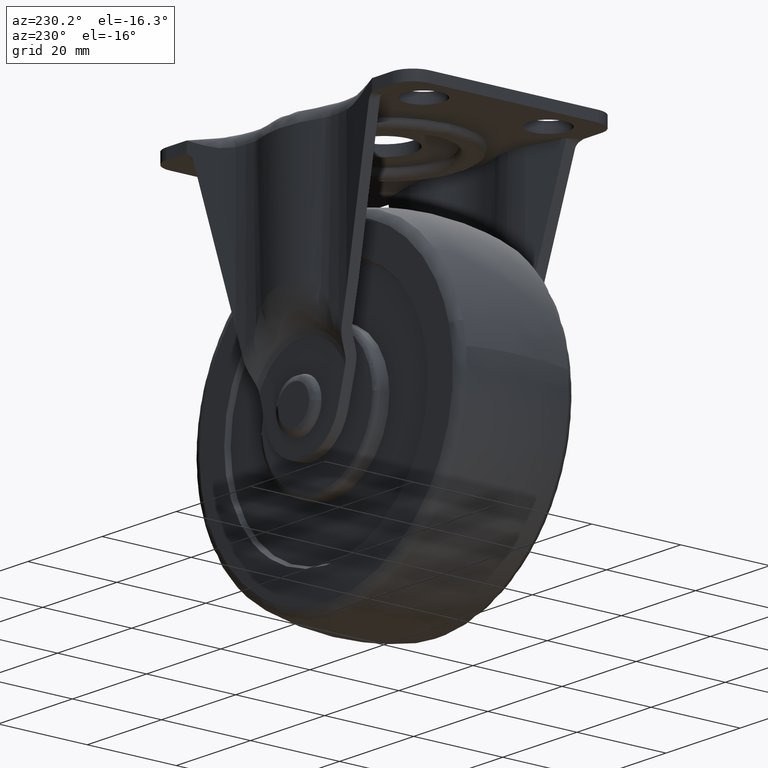
[diagram: clean part render]
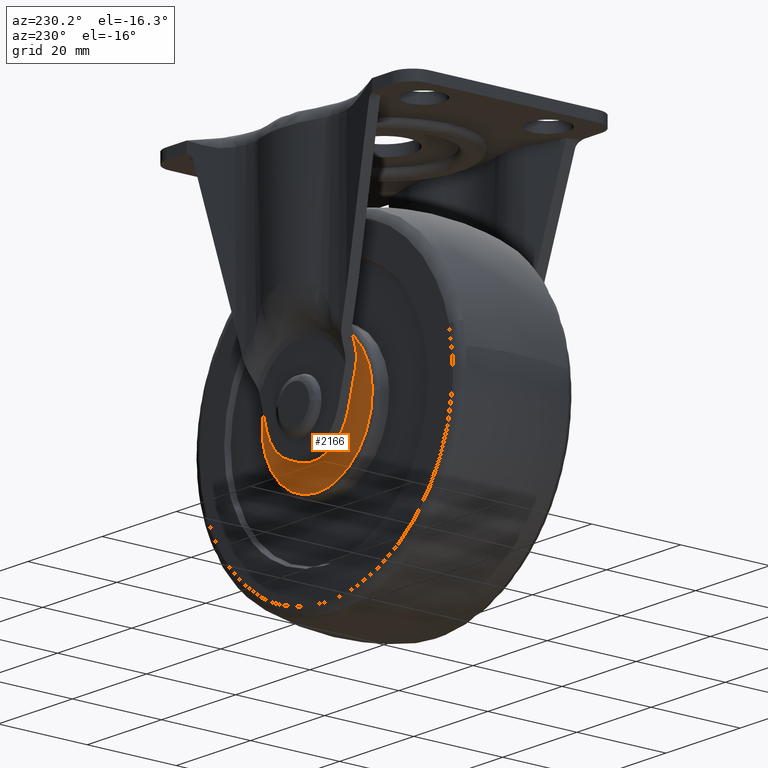
[diagram: same view with one face highlighted and labeled with its STEP entity id]
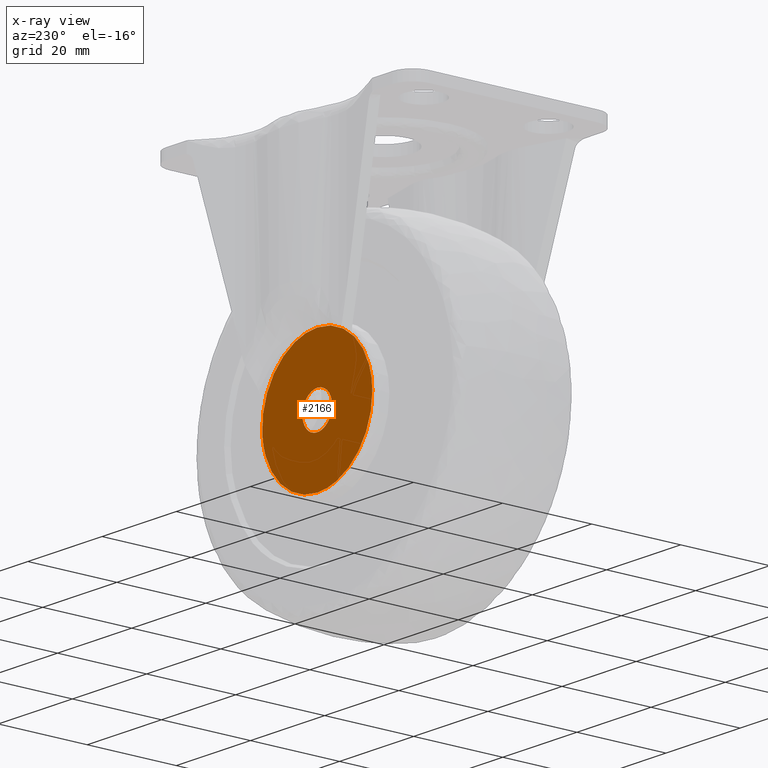
[diagram: x-ray of the same camera — body ghosted, the highlighted face saturated]
A machine part, auxiliary view. The second image highlights one B-rep face of the part: STEP entity #2166.
The next image is the same camera in x-ray: the body ghosted, the highlighted face saturated — about 0% of this face is hidden behind the body in this view.
In plain terms, the highlighted face is a freeform B-spline surface patch.
Its self-contained STEP definition (entity closure, byte-faithful):
#124=CARTESIAN_POINT('',(2.753418186849582,15.0,-2.901497104598689));
#125=VERTEX_POINT('',#124);
#131=CARTESIAN_POINT('',(0.0,15.0,-4.0));
#132=VERTEX_POINT('',#131);
#133=CARTESIAN_POINT('',(0.0,15.0,-4.0));
#134=CARTESIAN_POINT('',(0.411281065418479,15.000000000000041,-4.000233382833497));
#135=CARTESIAN_POINT('',(1.012178015002485,14.999999999999920,-3.906442857973365));
#136=CARTESIAN_POINT('',(1.954805351464561,15.000000000000080,-3.530355462710295));
#137=CARTESIAN_POINT('',(2.455247859110659,14.999999999999931,-3.184780186021824));
#138=CARTESIAN_POINT('',(2.753418186849582,15.0,-2.901497104598689));
#139=B_SPLINE_CURVE_WITH_KNOTS('',3,(#133,#134,#135,#136,#137,#138),.UNSPECIFIED.,.F.,.U.,(4,1,1,4),(0.000000036924167,1.233770300398311,1.803173889217264,3.036944152682459),.UNSPECIFIED.);
#140=EDGE_CURVE('',#132,#125,#139,.T.);
#142=CARTESIAN_POINT('',(-3.999999999999747,15.0,-0.000001422114586));
#143=VERTEX_POINT('',#142);
#144=CARTESIAN_POINT('',(-3.999999999999747,15.0,-0.000001422114586));
#145=CARTESIAN_POINT('',(-4.000131415905226,14.999999999999989,-0.359986068289557));
#146=CARTESIAN_POINT('',(-3.924360075715298,15.000000000000011,-0.916232165281375));
#147=CARTESIAN_POINT('',(-3.647958216249098,14.999999999999989,-1.688616519746435));
#148=CARTESIAN_POINT('',(-3.226721670894381,15.000000000000020,-2.432647580040876));
#149=CARTESIAN_POINT('',(-2.587996737392360,15.0,-3.103422916757284));
#150=CARTESIAN_POINT('',(-1.865596583772531,15.000000000000030,-3.560707182614698));
#151=CARTESIAN_POINT('',(-1.047070538680773,14.999999999999959,-3.899852388201856));
#152=CARTESIAN_POINT('',(-0.425458006456396,15.000000000000060,-4.000228060278216));
#153=CARTESIAN_POINT('',(0.0,15.0,-4.0));
#154=B_SPLINE_CURVE_WITH_KNOTS('',3,(#144,#145,#146,#147,#148,#149,#150,#151,#152,#153),.UNSPECIFIED.,.F.,.U.,(4,1,1,1,1,1,1,4),(0.000000109794394,1.079929653352755,1.669013743901721,2.454466620509347,3.632522488957104,4.417966446222109,5.007046871232914,6.283342175792430),.UNSPECIFIED.);
#155=EDGE_CURVE('',#143,#132,#154,.T.);
#157=CARTESIAN_POINT('',(0.0,15.0,4.0));
#158=VERTEX_POINT('',#157);
#159=CARTESIAN_POINT('',(0.0,15.0,4.0));
#160=CARTESIAN_POINT('',(-0.261786649221330,15.0,4.000030311106098));
#161=CARTESIAN_POINT('',(-0.818113472703123,15.0,3.945210557005112));
#162=CARTESIAN_POINT('',(-1.540028983150977,15.0,3.716530060783644));
#163=CARTESIAN_POINT('',(-2.205635413132823,15.0,3.360714901780175));
#164=CARTESIAN_POINT('',(-2.775950278660583,14.999999999999989,2.915668423866436));
#165=CARTESIAN_POINT('',(-3.334389285999332,15.000000000000020,2.268301528082932));
#166=CARTESIAN_POINT('',(-3.847434797148639,14.999999999999940,1.308753684857870));
#167=CARTESIAN_POINT('',(-4.000428423722541,15.000000000000091,0.490933353977176));
#168=CARTESIAN_POINT('',(-3.999999999999747,15.0,-0.000001422114586));
#169=B_SPLINE_CURVE_WITH_KNOTS('',3,(#159,#160,#161,#162,#163,#164,#165,#166,#167,#168),.UNSPECIFIED.,.F.,.U.,(4,1,1,1,1,1,1,4),(0.000000107845151,0.785384164561502,1.669014168319499,2.258107001564493,3.043504478465067,3.828876641769297,4.810686004064900,6.283343778887010),.UNSPECIFIED.);
#170=EDGE_CURVE('',#158,#143,#169,.T.);
#172=CARTESIAN_POINT('',(3.054222908621160,15.0,2.582968298141589));
#173=VERTEX_POINT('',#172);
#174=CARTESIAN_POINT('',(3.054222908621160,15.0,2.582968298141589));
#175=CARTESIAN_POINT('',(2.703996158234705,15.0,2.998089279087090));
#176=CARTESIAN_POINT('',(2.020153838719956,15.000000000000011,3.533156689072683));
#177=CARTESIAN_POINT('',(0.923067551567393,15.000000000000011,3.928644467739570));
#178=CARTESIAN_POINT('',(0.307703197532418,15.0,4.000055843034038));
#179=CARTESIAN_POINT('',(0.0,15.0,4.0));
#180=B_SPLINE_CURVE_WITH_KNOTS('',3,(#174,#175,#176,#177,#178,#179),.UNSPECIFIED.,.F.,.U.,(4,1,1,4),(0.000000066988236,1.629023395057059,2.552124155354419,3.475233432682463),.UNSPECIFIED.);
#181=EDGE_CURVE('',#173,#158,#180,.T.);
#217=CARTESIAN_POINT('',(3.999999999999748,15.0,0.000001422114585));
#218=VERTEX_POINT('',#217);
#219=CARTESIAN_POINT('',(3.999999999999748,15.0,0.000001422114585));
#220=CARTESIAN_POINT('',(4.000025149337777,15.000000000000020,0.263248068005417));
#221=CARTESIAN_POINT('',(3.944971718910189,14.999999999999980,0.818989742112668));
#222=CARTESIAN_POINT('',(3.660316564877854,15.000000000000030,1.716564589860577));
#223=CARTESIAN_POINT('',(3.299903172626157,14.999999999999989,2.292716870207074));
#224=CARTESIAN_POINT('',(3.054222908621160,15.0,2.582968298141589));
#225=B_SPLINE_CURVE_WITH_KNOTS('',3,(#219,#220,#221,#222,#223,#224),.UNSPECIFIED.,.F.,.U.,(4,1,1,4),(0.000000040107236,0.789760620236525,1.667253632524804,2.808033704546654),.UNSPECIFIED.);
#226=EDGE_CURVE('',#218,#173,#225,.T.);
#228=CARTESIAN_POINT('',(2.753418186849582,15.0,-2.901497104598689));
#229=CARTESIAN_POINT('',(2.974226834544422,15.000000000000020,-2.692042308483544));
#230=CARTESIAN_POINT('',(3.345755305605200,14.999999999999980,-2.248476439147650));
#231=CARTESIAN_POINT('',(3.849976200474854,15.000000000000020,-1.284682456170681));
#232=CARTESIAN_POINT('',(4.000525246351135,15.0,-0.507327890861913));
#233=CARTESIAN_POINT('',(3.999999999999748,15.0,0.000001422114585));
#234=B_SPLINE_CURVE_WITH_KNOTS('',3,(#228,#229,#230,#231,#232,#233),.UNSPECIFIED.,.F.,.U.,(4,1,1,4),(0.000000028428660,0.913050214077304,1.724649636432586,3.246400491814488),.UNSPECIFIED.);
#235=EDGE_CURVE('',#125,#218,#234,.T.);
#1606=CARTESIAN_POINT('',(14.813847916871790,15.000000000000030,-1.035538622441311));
#1607=VERTEX_POINT('',#1606);
#1608=CARTESIAN_POINT('',(0.0,15.0,14.849997650934140));
#1609=VERTEX_POINT('',#1608);
#1610=CARTESIAN_POINT('',(14.813847916871790,15.000000000000030,-1.035538622441311));
#1611=CARTESIAN_POINT('',(14.911812044587110,15.000000000000041,0.356888045510604));
#1612=CARTESIAN_POINT('',(14.760311291010670,14.999999999999989,2.465853134897668));
#1613=CARTESIAN_POINT('',(13.855674976181950,15.000000000000069,5.580971272637094));
#1614=CARTESIAN_POINT('',(12.673211683589381,14.999999999999970,7.917305907120219));
#1615=CARTESIAN_POINT('',(11.110863834224221,15.000000000000030,9.926701562119336));
#1616=CARTESIAN_POINT('',(9.237996428415860,14.999999999999989,11.739635161793430));
#1617=CARTESIAN_POINT('',(7.050625029194907,15.0,13.182698472168850));
#1618=CARTESIAN_POINT('',(4.749977917126099,15.000000000000011,14.113321758734291));
#1619=CARTESIAN_POINT('',(2.537710522518824,14.999999999999980,14.693226744084649));
#1620=CARTESIAN_POINT('',(1.015117465699373,15.000000000000011,14.850146136485231));
#1621=CARTESIAN_POINT('',(0.0,15.0,14.849997650934140));
#1622=B_SPLINE_CURVE_WITH_KNOTS('',3,(#1610,#1611,#1612,#1613,#1614,#1615,#1616,#1617,#1618,#1619,#1620,#1621),.UNSPECIFIED.,.F.,.U.,(4,1,1,1,1,1,1,1,1,4),(0.000000032364039,4.187352602024177,6.281054422409291,9.707117551488308,11.991102559966700,13.894408755043131,17.510804304646669,19.794832499934991,21.317543762248199,24.362868234977160),.UNSPECIFIED.);
#1623=EDGE_CURVE('',#1607,#1609,#1622,.T.);
#1625=CARTESIAN_POINT('',(-14.848825168991320,15.000000000000030,0.186605663345871));
#1626=VERTEX_POINT('',#1625);
#1627=CARTESIAN_POINT('',(0.0,15.0,14.849997650934140));
#1628=CARTESIAN_POINT('',(-1.084691967737202,14.999999999999950,14.850207957974400));
#1629=CARTESIAN_POINT('',(-2.832118361802218,15.000000000000060,14.657615913880580));
#1630=CARTESIAN_POINT('',(-5.265615262923359,14.999999999999980,13.941784789127450));
#1631=CARTESIAN_POINT('',(-7.516243753746062,15.000000000000011,12.903850866203900));
#1632=CARTESIAN_POINT('',(-9.594793585850800,14.999999999999931,11.436257521035429));
#1633=CARTESIAN_POINT('',(-11.378522580338529,15.000000000000069,9.631241553532909));
#1634=CARTESIAN_POINT('',(-12.868909531104659,15.000000000000030,7.575884229795671));
#1635=CARTESIAN_POINT('',(-13.937513388813491,15.000000000000091,5.333597007439649));
#1636=CARTESIAN_POINT('',(-14.657234410989901,14.999999999999980,2.775507779442614));
#1637=CARTESIAN_POINT('',(-14.836823483456650,15.000000000000190,1.150683276144067));
#1638=CARTESIAN_POINT('',(-14.848825168991320,15.000000000000030,0.186605663345871));
#1639=B_SPLINE_CURVE_WITH_KNOTS('',3,(#1627,#1628,#1629,#1630,#1631,#1632,#1633,#1634,#1635,#1636,#1637,#1638),.UNSPECIFIED.,.F.,.U.,(4,1,1,1,1,1,1,1,1,4),(0.000000062415094,3.254030345674995,5.242623319018978,7.592779268386497,10.666074495416840,12.835337645016811,15.185510853227120,18.258801741857269,20.247403342940999,23.139854072044599),.UNSPECIFIED.);
#1640=EDGE_CURVE('',#1609,#1626,#1639,.T.);
#1692=CARTESIAN_POINT('',(0.0,15.0,-14.849997650934140));
#1693=VERTEX_POINT('',#1692);
#1694=CARTESIAN_POINT('',(0.0,15.0,-14.849997650934140));
#1695=CARTESIAN_POINT('',(1.102905976210223,15.000000000000011,-14.850241735888901));
#1696=CARTESIAN_POINT('',(2.786148283811361,14.999999999999989,-14.661531565996730));
#1697=CARTESIAN_POINT('',(5.188098719535177,15.000000000000030,-13.967101347786510));
#1698=CARTESIAN_POINT('',(7.153912035007933,14.999999999999989,-13.084175425146229));
#1699=CARTESIAN_POINT('',(9.003721495157533,15.000000000000011,-11.870939589502489));
#1700=CARTESIAN_POINT('',(10.663764626225399,14.999999999999870,-10.411493391394060));
#1701=CARTESIAN_POINT('',(12.207676856169829,15.000000000000091,-8.589812442064815));
#1702=CARTESIAN_POINT('',(13.556922840143301,14.999999999999989,-6.271945503424270));
#1703=CARTESIAN_POINT('',(14.469342963584980,15.000000000000050,-3.688096961425006));
#1704=CARTESIAN_POINT('',(14.753204239954460,15.000000000000020,-1.904120328241256));
#1705=CARTESIAN_POINT('',(14.813847916871790,15.000000000000030,-1.035538622441311));
#1706=B_SPLINE_CURVE_WITH_KNOTS('',3,(#1694,#1695,#1696,#1697,#1698,#1699,#1700,#1701,#1702,#1703,#1704,#1705),.UNSPECIFIED.,.F.,.U.,(4,1,1,1,1,1,1,1,1,4),(0.000000074214011,3.308657608347069,5.050094922000845,7.488088999077867,9.751935010762093,11.667409844621099,14.105433943806810,16.891694216119820,19.677977482755761,22.290069752651441),.UNSPECIFIED.);
#1707=EDGE_CURVE('',#1693,#1607,#1706,.T.);
#1713=CARTESIAN_POINT('',(-14.848825168991320,15.000000000000030,0.186605663345871));
#1714=CARTESIAN_POINT('',(-14.861261221542970,15.000000000000041,-0.793020858505955));
#1715=CARTESIAN_POINT('',(-14.723015253433980,15.000000000000011,-2.386846411782952));
#1716=CARTESIAN_POINT('',(-14.197526917884749,15.000000000000020,-4.468758364965011));
#1717=CARTESIAN_POINT('',(-13.366542485961659,15.000000000000041,-6.646043757525988));
#1718=CARTESIAN_POINT('',(-12.039820527817870,14.999999999999970,-8.869826573466478));
#1719=CARTESIAN_POINT('',(-10.295227390136800,15.000000000000041,-10.772475909243580));
#1720=CARTESIAN_POINT('',(-8.635082433041033,14.999999999999989,-12.132989352683420));
#1721=CARTESIAN_POINT('',(-6.810530524786102,14.999999999999970,-13.268487694613910));
#1722=CARTESIAN_POINT('',(-4.882415359083121,15.000000000000069,-14.074222855334719));
#1723=CARTESIAN_POINT('',(-2.571649494155637,14.999999999999890,-14.688320569855980));
#1724=CARTESIAN_POINT('',(-1.040951807995088,15.000000000000400,-14.850189773440380));
#1725=CARTESIAN_POINT('',(0.0,15.0,-14.849997650934140));
#1726=B_SPLINE_CURVE_WITH_KNOTS('',3,(#1713,#1714,#1715,#1716,#1717,#1718,#1719,#1720,#1721,#1722,#1723,#1724,#1725),.UNSPECIFIED.,.F.,.U.,(4,1,1,1,1,1,1,1,1,1,4),(0.000000053728403,2.939102236170736,4.776084683209280,6.429360327647952,9.919626242031091,12.491284151880910,14.144570124655790,16.348933450391829,18.920689951995410,20.390270763546098,23.513082244356649),.UNSPECIFIED.);
#1727=EDGE_CURVE('',#1626,#1693,#1726,.T.);
#2147=CARTESIAN_POINT('',(-16.332203750808770,15.0,-16.333512358698108));
#2148=CARTESIAN_POINT('',(-16.332203750808770,15.0,16.333513155314058));
#2149=CARTESIAN_POINT('',(16.331818420269570,15.0,-16.333512358698108));
#2150=CARTESIAN_POINT('',(16.331818420269570,15.0,16.333513155314058));
#2151=B_SPLINE_SURFACE_WITH_KNOTS('',1,1,((#2147,#2149),(#2148,#2150)),.UNSPECIFIED.,.F.,.F.,.U.,(2,2),(2,2),(0.0,32.667025514012167),(0.0,32.664022171078336),.UNSPECIFIED.);
#2152=ORIENTED_EDGE('',*,*,#1727,.F.);
#2153=ORIENTED_EDGE('',*,*,#1640,.F.);
#2154=ORIENTED_EDGE('',*,*,#1623,.F.);
#2155=ORIENTED_EDGE('',*,*,#1707,.F.);
#2156=EDGE_LOOP('',(#2152,#2153,#2154,#2155));
#2157=FACE_OUTER_BOUND('',#2156,.T.);
#2158=ORIENTED_EDGE('',*,*,#170,.T.);
#2159=ORIENTED_EDGE('',*,*,#155,.T.);
#2160=ORIENTED_EDGE('',*,*,#140,.T.);
#2161=ORIENTED_EDGE('',*,*,#235,.T.);
#2162=ORIENTED_EDGE('',*,*,#226,.T.);
#2163=ORIENTED_EDGE('',*,*,#181,.T.);
#2164=EDGE_LOOP('',(#2158,#2159,#2160,#2161,#2162,#2163));
#2165=FACE_BOUND('',#2164,.T.);
#2166=ADVANCED_FACE('',(#2157,#2165),#2151,.T.);